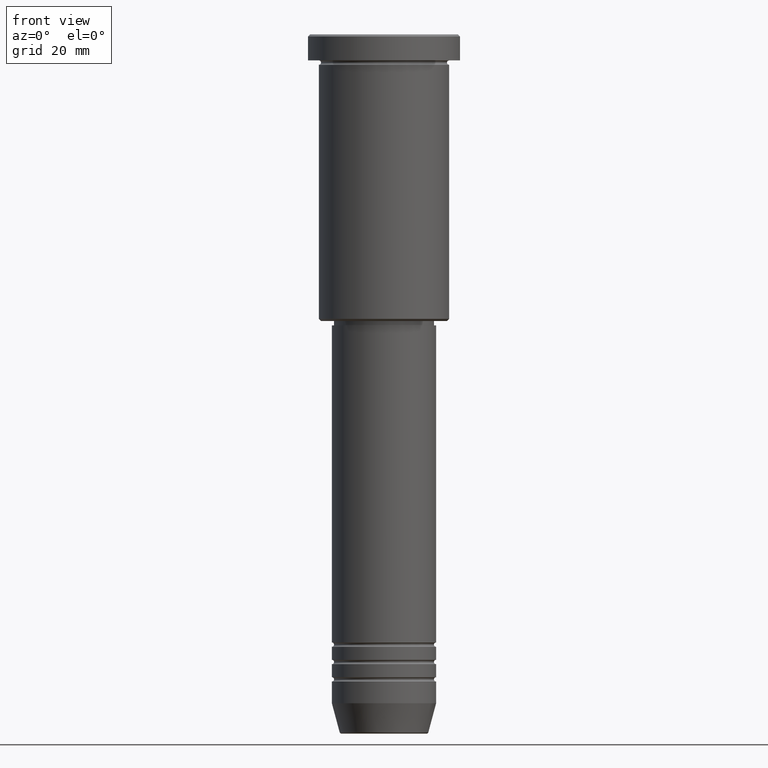
[diagram: clean part render]
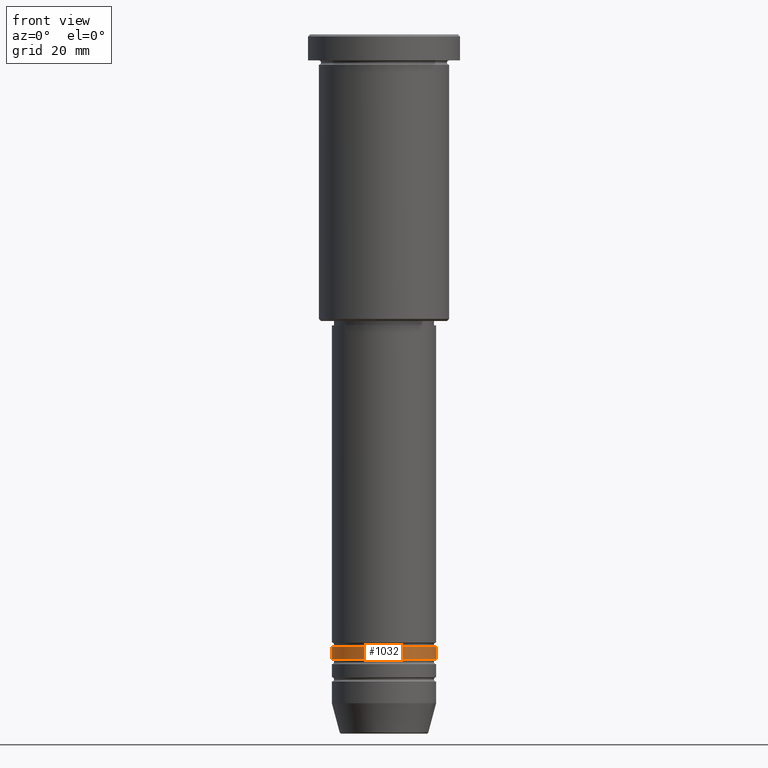
[diagram: same view with one face highlighted and labeled with its STEP entity id]
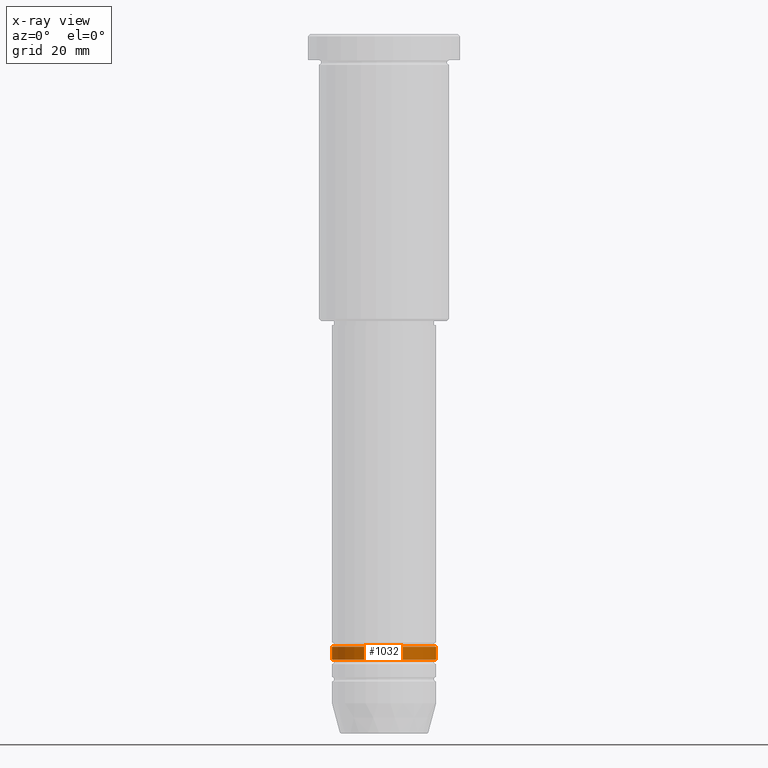
[diagram: x-ray of the same camera — body ghosted, the highlighted face saturated]
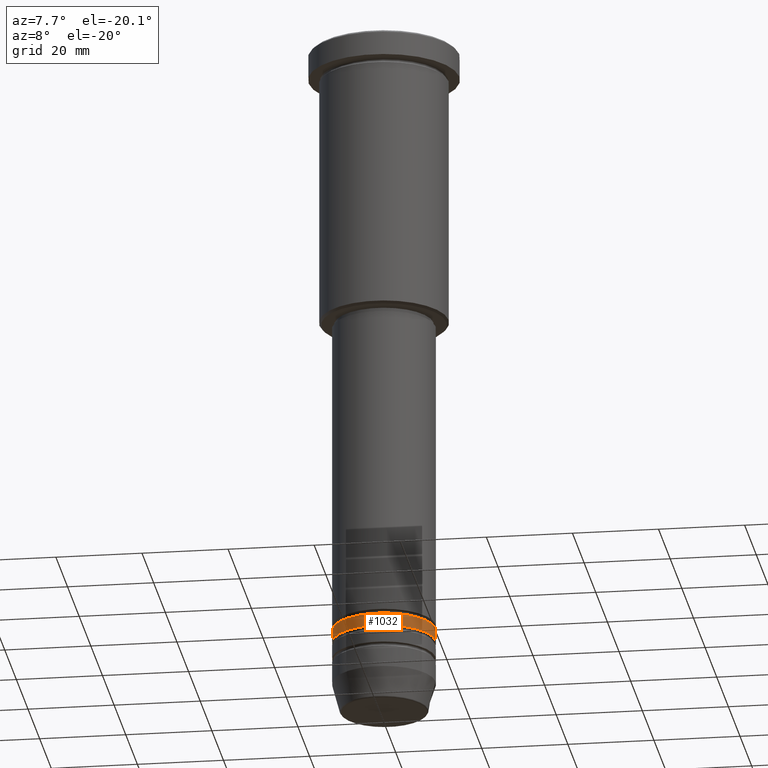
[diagram: same view with one face highlighted and labeled with its STEP entity id]
A machine part, front view. The second image highlights one B-rep face of the part: STEP entity #1032.
The next image is the same camera in x-ray: the body ghosted, the highlighted face saturated — about 0% of this face is hidden behind the body in this view.
A second angle (auxiliary view) of the same face is appended — the face is thin or edge-on in the first view.
In plain terms, the highlighted cylindrical surface (partial cylindrical patch) has radius 12 mm, axis along (-0, -0, 1).
Its self-contained STEP definition (entity closure, byte-faithful):
#35 = LINE ( 'NONE', #132, #513 ) ;
#60 = CIRCLE ( 'NONE', #548, 12.00000000000000000 ) ;
#63 = EDGE_LOOP ( 'NONE', ( #629, #262, #98, #438 ) ) ;
#86 = CIRCLE ( 'NONE', #894, 12.00000000000000355 ) ;
#98 = ORIENTED_EDGE ( 'NONE', *, *, #1067, .T. ) ;
#120 = DIRECTION ( 'NONE',  ( -0.000000000000000000, -0.000000000000000000, 1.000000000000000000 ) ) ;
#124 = EDGE_CURVE ( 'NONE', #1147, #898, #60, .T. ) ;
#132 = CARTESIAN_POINT ( 'NONE',  ( 12.00000000000000178, 0.000000000000000000, 0.000000000000000000 ) ) ;
#162 = VECTOR ( 'NONE', #797, 1000.000000000000000 ) ;
#244 = CARTESIAN_POINT ( 'NONE',  ( -12.00000000000000178, 1.469576158976824144E-15, 0.000000000000000000 ) ) ;
#262 = ORIENTED_EDGE ( 'NONE', *, *, #800, .T. ) ;
#293 = CARTESIAN_POINT ( 'NONE',  ( 0.000000000000000000, 0.000000000000000000, -143.9999999999999432 ) ) ;
#329 = CARTESIAN_POINT ( 'NONE',  ( -12.00000000000000000, 1.469576158976824144E-15, -140.9999999999999147 ) ) ;
#365 = LINE ( 'NONE', #244, #162 ) ;
#417 = VERTEX_POINT ( 'NONE', #853 ) ;
#438 = ORIENTED_EDGE ( 'NONE', *, *, #124, .F. ) ;
#450 = CARTESIAN_POINT ( 'NONE',  ( 0.000000000000000000, 0.000000000000000000, -140.9999999999999147 ) ) ;
#460 = CARTESIAN_POINT ( 'NONE',  ( 12.00000000000000000, 0.000000000000000000, -140.9999999999999147 ) ) ;
#485 = DIRECTION ( 'NONE',  ( 1.000000000000000000, 0.000000000000000000, 0.000000000000000000 ) ) ;
#513 = VECTOR ( 'NONE', #1128, 1000.000000000000000 ) ;
#548 = AXIS2_PLACEMENT_3D ( 'NONE', #450, #808, #1083 ) ;
#572 = CYLINDRICAL_SURFACE ( 'NONE', #583, 12.00000000000000178 ) ;
#583 = AXIS2_PLACEMENT_3D ( 'NONE', #940, #120, #485 ) ;
#629 = ORIENTED_EDGE ( 'NONE', *, *, #634, .F. ) ;
#630 = DIRECTION ( 'NONE',  ( -0.000000000000000000, -0.000000000000000000, 1.000000000000000000 ) ) ;
#634 = EDGE_CURVE ( 'NONE', #417, #1147, #365, .T. ) ;
#645 = DIRECTION ( 'NONE',  ( 1.000000000000000000, 0.000000000000000000, 0.000000000000000000 ) ) ;
#662 = FACE_OUTER_BOUND ( 'NONE', #63, .T. ) ;
#797 = DIRECTION ( 'NONE',  ( -0.000000000000000000, -0.000000000000000000, 1.000000000000000000 ) ) ;
#800 = EDGE_CURVE ( 'NONE', #417, #1129, #86, .T. ) ;
#808 = DIRECTION ( 'NONE',  ( -0.000000000000000000, -0.000000000000000000, 1.000000000000000000 ) ) ;
#853 = CARTESIAN_POINT ( 'NONE',  ( -12.00000000000000533, 1.469576158976824539E-15, -143.9999999999999432 ) ) ;
#885 = CARTESIAN_POINT ( 'NONE',  ( 12.00000000000000355, 0.000000000000000000, -143.9999999999999432 ) ) ;
#894 = AXIS2_PLACEMENT_3D ( 'NONE', #293, #630, #645 ) ;
#898 = VERTEX_POINT ( 'NONE', #460 ) ;
#940 = CARTESIAN_POINT ( 'NONE',  ( 0.000000000000000000, 0.000000000000000000, 0.000000000000000000 ) ) ;
#1032 = ADVANCED_FACE ( 'NONE', ( #662 ), #572, .T. ) ;
#1067 = EDGE_CURVE ( 'NONE', #1129, #898, #35, .T. ) ;
#1083 = DIRECTION ( 'NONE',  ( 1.000000000000000000, 0.000000000000000000, 0.000000000000000000 ) ) ;
#1128 = DIRECTION ( 'NONE',  ( -0.000000000000000000, -0.000000000000000000, 1.000000000000000000 ) ) ;
#1129 = VERTEX_POINT ( 'NONE', #885 ) ;
#1147 = VERTEX_POINT ( 'NONE', #329 ) ;